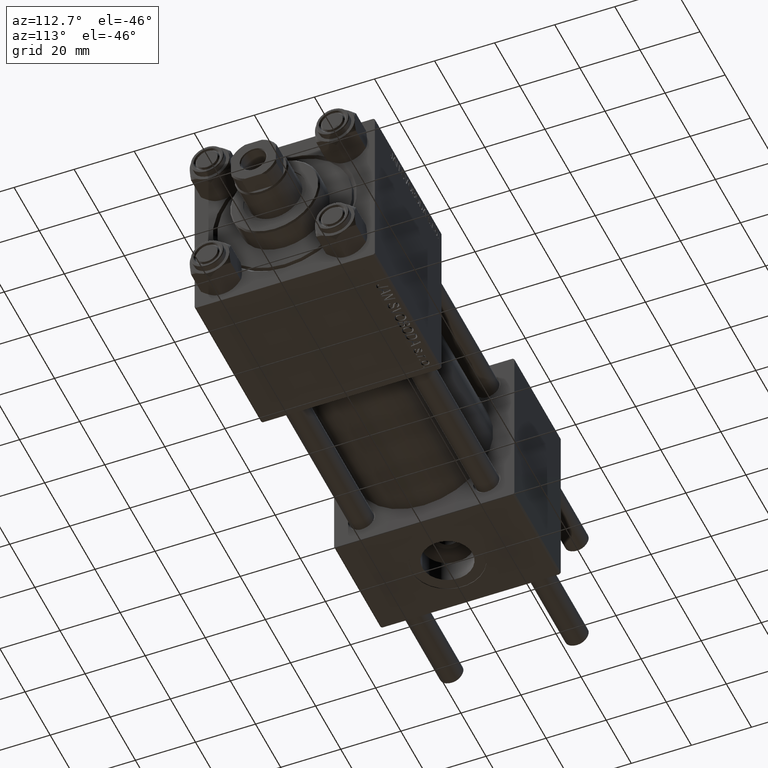
[diagram: clean part render]
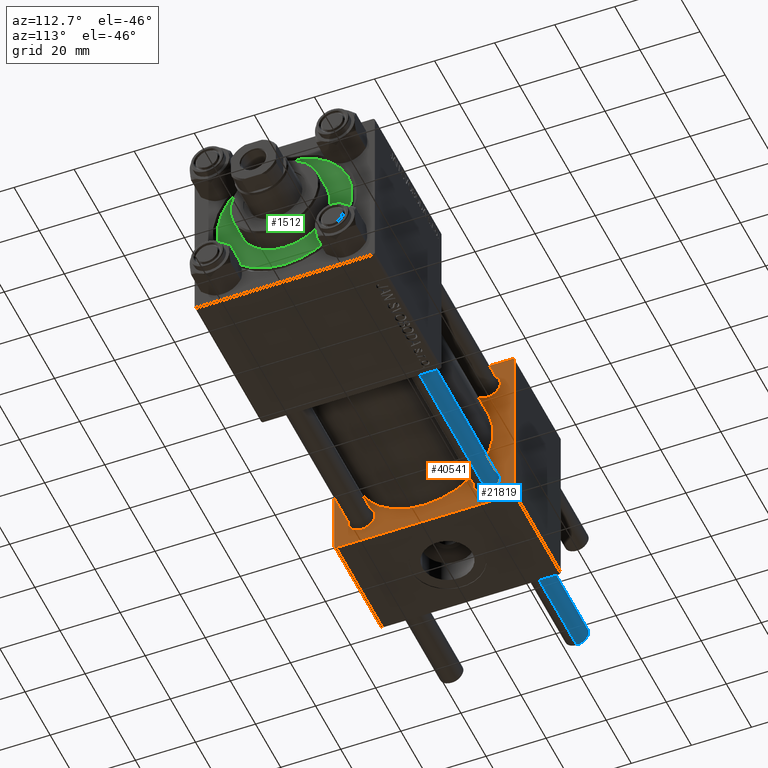
[diagram: same view with three faces highlighted in distinct colors, each labeled with its STEP entity id]
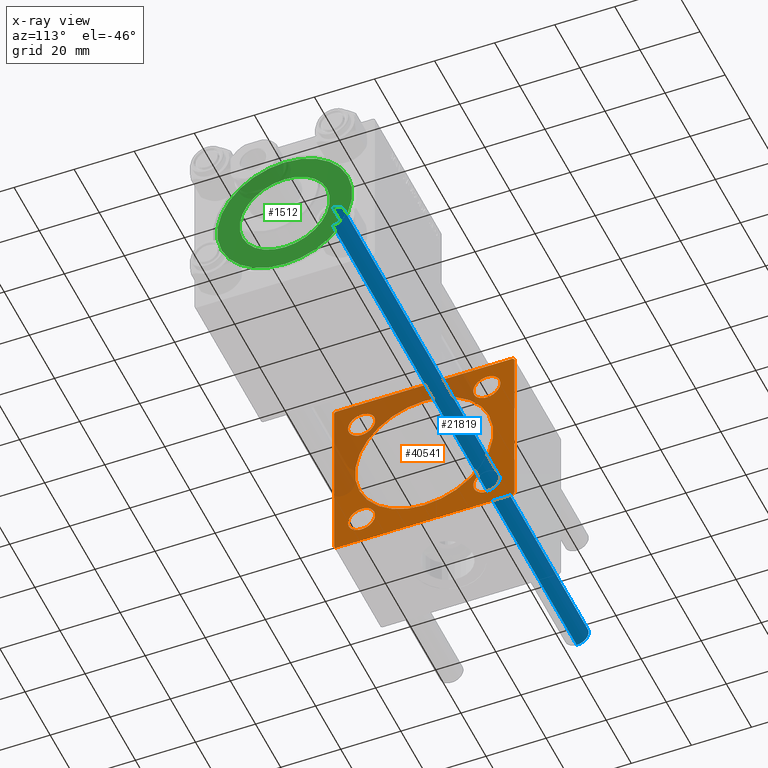
[diagram: x-ray of the same camera — body ghosted, the three highlighted faces saturated]
A machine part, auxiliary view with three faces highlighted in distinct colors.
The next image is the same camera in x-ray (body ghosted, the three faces saturated) — at least one of them is partly hidden behind the body in this view.
Their STEP definitions:

[orange] entity #40541 — the highlighted planar face has unit normal (-1, 0, 0).
#256 = EDGE_CURVE ( 'NONE', #1060, #20902, #37495, .T. ) ;
#368 = EDGE_CURVE ( 'NONE', #22522, #45989, #4483, .T. ) ;
#1060 = VERTEX_POINT ( 'NONE', #5241 ) ;
#1806 = VERTEX_POINT ( 'NONE', #31183 ) ;
#1809 = VECTOR ( 'NONE', #40213, 999.9999999999998863 ) ;
#2193 = CARTESIAN_POINT ( 'NONE',  ( 37.00000000000000000, 29.99999999999999289, 30.00000000000000000 ) ) ;
#2601 = CARTESIAN_POINT ( 'NONE',  ( 37.00000000000000000, 29.99999999999999289, -29.50000000000000000 ) ) ;
#3244 = DIRECTION ( 'NONE',  ( 0.000000000000000000, 0.000000000000000000, 1.000000000000000000 ) ) ;
#3779 = ORIENTED_EDGE ( 'NONE', *, *, #7545, .T. ) ;
#4015 = FACE_BOUND ( 'NONE', #40299, .T. ) ;
#4112 = DIRECTION ( 'NONE',  ( 0.000000000000000000, -0.7071067811865474617, 0.7071067811865474617 ) ) ;
#4483 = CIRCLE ( 'NONE', #27017, 4.499999999999990230 ) ;
#4517 = FACE_OUTER_BOUND ( 'NONE', #26734, .T. ) ;
#4529 = AXIS2_PLACEMENT_3D ( 'NONE', #31005, #8056, #23442 ) ;
#4650 = EDGE_CURVE ( 'NONE', #11129, #15801, #16479, .T. ) ;
#4826 = CARTESIAN_POINT ( 'NONE',  ( 37.00000000000000000, -20.84999999999999076, 16.35000000000001208 ) ) ;
#5230 = CARTESIAN_POINT ( 'NONE',  ( 37.00000000000000000, -20.84999999999999076, -20.85000000000000497 ) ) ;
#5232 = ORIENTED_EDGE ( 'NONE', *, *, #11017, .T. ) ;
#5241 = CARTESIAN_POINT ( 'NONE',  ( 37.00000000000000000, -20.84999999999999076, -16.35000000000001208 ) ) ;
#6235 = AXIS2_PLACEMENT_3D ( 'NONE', #41097, #18134, #3244 ) ;
#6612 = DIRECTION ( 'NONE',  ( -0.000000000000000000, -0.7071067811865474617, -0.7071067811865474617 ) ) ;
#6802 = VECTOR ( 'NONE', #4112, 1000.000000000000114 ) ;
#7027 = VECTOR ( 'NONE', #6612, 1000.000000000000114 ) ;
#7216 = DIRECTION ( 'NONE',  ( 0.000000000000000000, 0.000000000000000000, 1.000000000000000000 ) ) ;
#7545 = EDGE_CURVE ( 'NONE', #12221, #1806, #41200, .T. ) ;
#7638 = EDGE_LOOP ( 'NONE', ( #33575, #37806 ) ) ;
#7967 = AXIS2_PLACEMENT_3D ( 'NONE', #9785, #25666, #32740 ) ;
#8056 = DIRECTION ( 'NONE',  ( -1.000000000000000000, 0.000000000000000000, -0.000000000000000000 ) ) ;
#8092 = DIRECTION ( 'NONE',  ( -1.000000000000000000, 0.000000000000000000, -0.000000000000000000 ) ) ;
#8178 = CARTESIAN_POINT ( 'NONE',  ( 37.00000000000000000, 2.816687638038911957E-15, -23.00000000000000000 ) ) ;
#8447 = VERTEX_POINT ( 'NONE', #23274 ) ;
#9396 = ORIENTED_EDGE ( 'NONE', *, *, #18252, .T. ) ;
#9465 = CARTESIAN_POINT ( 'NONE',  ( 37.00000000000000000, 29.99999999999999289, 30.00000000000000000 ) ) ;
#9658 = EDGE_CURVE ( 'NONE', #45989, #22522, #10273, .T. ) ;
#9785 = CARTESIAN_POINT ( 'NONE',  ( 37.00000000000000000, -20.84999999999999076, -20.85000000000000497 ) ) ;
#9933 = CARTESIAN_POINT ( 'NONE',  ( 37.00000000000000000, 20.84999999999999787, 16.35000000000001208 ) ) ;
#10206 = CARTESIAN_POINT ( 'NONE',  ( 37.00000000000000000, 20.84999999999999787, 20.85000000000000142 ) ) ;
#10273 = CIRCLE ( 'NONE', #6235, 4.499999999999990230 ) ;
#10316 = CARTESIAN_POINT ( 'NONE',  ( 37.00000000000000000, 0.000000000000000000, 23.00000000000000000 ) ) ;
#10393 = EDGE_LOOP ( 'NONE', ( #5232, #20477 ) ) ;
#10896 = CARTESIAN_POINT ( 'NONE',  ( 37.00000000000000000, -30.00000000000000000, 29.49999999999999289 ) ) ;
#10984 = ORIENTED_EDGE ( 'NONE', *, *, #4650, .T. ) ;
#10988 = ORIENTED_EDGE ( 'NONE', *, *, #36198, .T. ) ;
#11017 = EDGE_CURVE ( 'NONE', #24084, #8447, #47375, .T. ) ;
#11129 = VERTEX_POINT ( 'NONE', #25975 ) ;
#11206 = ORIENTED_EDGE ( 'NONE', *, *, #15486, .T. ) ;
#11262 = EDGE_CURVE ( 'NONE', #37866, #1806, #25176, .T. ) ;
#11881 = CARTESIAN_POINT ( 'NONE',  ( 37.00000000000000000, -20.84999999999999076, 20.85000000000000497 ) ) ;
#11942 = LINE ( 'NONE', #42221, #6802 ) ;
#12221 = VERTEX_POINT ( 'NONE', #21205 ) ;
#12892 = CARTESIAN_POINT ( 'NONE',  ( 37.00000000000000000, 0.000000000000000000, 0.000000000000000000 ) ) ;
#13393 = DIRECTION ( 'NONE',  ( -1.000000000000000000, 0.000000000000000000, -0.000000000000000000 ) ) ;
#14431 = CARTESIAN_POINT ( 'NONE',  ( 37.00000000000000000, -30.00000000000000000, 29.99999999999999289 ) ) ;
#14795 = EDGE_CURVE ( 'NONE', #41622, #23012, #49908, .T. ) ;
#15185 = LINE ( 'NONE', #26543, #43147 ) ;
#15486 = EDGE_CURVE ( 'NONE', #46972, #11129, #36639, .T. ) ;
#15629 = PLANE ( 'NONE',  #4529 ) ;
#15660 = AXIS2_PLACEMENT_3D ( 'NONE', #10206, #32660, #49033 ) ;
#15770 = CARTESIAN_POINT ( 'NONE',  ( 37.00000000000000000, 20.84999999999999787, -20.85000000000000142 ) ) ;
#15801 = VERTEX_POINT ( 'NONE', #30747 ) ;
#16479 = LINE ( 'NONE', #33854, #22972 ) ;
#16835 = DIRECTION ( 'NONE',  ( 0.000000000000000000, 0.000000000000000000, 1.000000000000000000 ) ) ;
#18134 = DIRECTION ( 'NONE',  ( -1.000000000000000000, 0.000000000000000000, -0.000000000000000000 ) ) ;
#18252 = EDGE_CURVE ( 'NONE', #20902, #1060, #18447, .T. ) ;
#18296 = CARTESIAN_POINT ( 'NONE',  ( 37.00000000000000000, 29.49999999999999289, 30.00000000000000000 ) ) ;
#18447 = CIRCLE ( 'NONE', #7967, 4.499999999999990230 ) ;
#19207 = DIRECTION ( 'NONE',  ( 0.000000000000000000, -1.000000000000000000, -1.156482317317871725E-16 ) ) ;
#20063 = LINE ( 'NONE', #9465, #31793 ) ;
#20398 = DIRECTION ( 'NONE',  ( 0.000000000000000000, 0.000000000000000000, -1.000000000000000000 ) ) ;
#20477 = ORIENTED_EDGE ( 'NONE', *, *, #36282, .T. ) ;
#20877 = VECTOR ( 'NONE', #41417, 1000.000000000000000 ) ;
#20902 = VERTEX_POINT ( 'NONE', #25826 ) ;
#21205 = CARTESIAN_POINT ( 'NONE',  ( 37.00000000000000000, 29.49999999999997868, -30.00000000000000000 ) ) ;
#21216 = AXIS2_PLACEMENT_3D ( 'NONE', #11881, #8092, #35081 ) ;
#21535 = CARTESIAN_POINT ( 'NONE',  ( 37.00000000000000000, -29.49999999999998579, 29.99999999999999289 ) ) ;
#21711 = VERTEX_POINT ( 'NONE', #32225 ) ;
#21766 = CARTESIAN_POINT ( 'NONE',  ( 37.00000000000000000, -20.84999999999999076, 20.85000000000000497 ) ) ;
#21771 = ORIENTED_EDGE ( 'NONE', *, *, #29430, .F. ) ;
#22522 = VERTEX_POINT ( 'NONE', #37002 ) ;
#22972 = VECTOR ( 'NONE', #29561, 1000.000000000000114 ) ;
#23012 = VERTEX_POINT ( 'NONE', #8178 ) ;
#23274 = CARTESIAN_POINT ( 'NONE',  ( 37.00000000000000000, 20.84999999999999787, 25.34999999999999076 ) ) ;
#23442 = DIRECTION ( 'NONE',  ( -0.000000000000000000, 0.000000000000000000, 1.000000000000000000 ) ) ;
#23697 = FACE_BOUND ( 'NONE', #38952, .T. ) ;
#23699 = ORIENTED_EDGE ( 'NONE', *, *, #256, .T. ) ;
#24084 = VERTEX_POINT ( 'NONE', #9933 ) ;
#24402 = DIRECTION ( 'NONE',  ( 0.000000000000000000, 0.000000000000000000, 1.000000000000000000 ) ) ;
#24435 = CIRCLE ( 'NONE', #21216, 4.499999999999990230 ) ;
#24646 = DIRECTION ( 'NONE',  ( 1.000000000000000000, -0.000000000000000000, 0.000000000000000000 ) ) ;
#24718 = CIRCLE ( 'NONE', #42414, 4.499999999999990230 ) ;
#25176 = LINE ( 'NONE', #2193, #44947 ) ;
#25241 = DIRECTION ( 'NONE',  ( 0.000000000000000000, 0.000000000000000000, 1.000000000000000000 ) ) ;
#25325 = ORIENTED_EDGE ( 'NONE', *, *, #14795, .F. ) ;
#25666 = DIRECTION ( 'NONE',  ( -1.000000000000000000, 0.000000000000000000, -0.000000000000000000 ) ) ;
#25826 = CARTESIAN_POINT ( 'NONE',  ( 37.00000000000000000, -20.84999999999999076, -25.34999999999999432 ) ) ;
#25975 = CARTESIAN_POINT ( 'NONE',  ( 37.00000000000000000, -30.00000000000000000, -29.50000000000001776 ) ) ;
#26032 = LINE ( 'NONE', #10896, #7027 ) ;
#26061 = DIRECTION ( 'NONE',  ( -1.000000000000000000, 0.000000000000000000, -0.000000000000000000 ) ) ;
#26543 = CARTESIAN_POINT ( 'NONE',  ( 37.00000000000000000, 29.99999999999999289, -30.00000000000000000 ) ) ;
#26734 = EDGE_LOOP ( 'NONE', ( #41058, #3779, #49032, #35769, #10988, #29369, #11206, #10984 ) ) ;
#27017 = AXIS2_PLACEMENT_3D ( 'NONE', #15770, #45806, #7216 ) ;
#28267 = DIRECTION ( 'NONE',  ( 0.000000000000000000, 0.000000000000000000, 1.000000000000000000 ) ) ;
#28649 = AXIS2_PLACEMENT_3D ( 'NONE', #5230, #31969, #16835 ) ;
#28801 = EDGE_LOOP ( 'NONE', ( #44195, #34320 ) ) ;
#29028 = CARTESIAN_POINT ( 'NONE',  ( 37.00000000000000000, 20.84999999999999787, -25.34999999999999076 ) ) ;
#29369 = ORIENTED_EDGE ( 'NONE', *, *, #42560, .T. ) ;
#29430 = EDGE_CURVE ( 'NONE', #23012, #41622, #29953, .T. ) ;
#29561 = DIRECTION ( 'NONE',  ( 0.000000000000000000, 0.7071067811865474617, -0.7071067811865474617 ) ) ;
#29953 = CIRCLE ( 'NONE', #34786, 23.00000000000000000 ) ;
#30747 = CARTESIAN_POINT ( 'NONE',  ( 37.00000000000000000, -29.50000000000000000, -30.00000000000000711 ) ) ;
#31005 = CARTESIAN_POINT ( 'NONE',  ( 37.00000000000000000, 0.000000000000000000, 0.000000000000000000 ) ) ;
#31183 = CARTESIAN_POINT ( 'NONE',  ( 37.00000000000000000, 29.99999999999999289, -29.50000000000000000 ) ) ;
#31793 = VECTOR ( 'NONE', #35706, 1000.000000000000000 ) ;
#31969 = DIRECTION ( 'NONE',  ( -1.000000000000000000, 0.000000000000000000, -0.000000000000000000 ) ) ;
#32201 = CARTESIAN_POINT ( 'NONE',  ( 37.00000000000000000, 0.000000000000000000, 0.000000000000000000 ) ) ;
#32225 = CARTESIAN_POINT ( 'NONE',  ( 37.00000000000000000, -20.84999999999999076, 25.34999999999999432 ) ) ;
#32660 = DIRECTION ( 'NONE',  ( -1.000000000000000000, 0.000000000000000000, -0.000000000000000000 ) ) ;
#32740 = DIRECTION ( 'NONE',  ( 0.000000000000000000, 0.000000000000000000, 1.000000000000000000 ) ) ;
#33345 = EDGE_CURVE ( 'NONE', #38277, #21711, #24435, .T. ) ;
#33575 = ORIENTED_EDGE ( 'NONE', *, *, #9658, .T. ) ;
#33854 = CARTESIAN_POINT ( 'NONE',  ( 37.00000000000000000, -29.50000000000001066, -30.00000000000000711 ) ) ;
#34320 = ORIENTED_EDGE ( 'NONE', *, *, #40973, .T. ) ;
#34786 = AXIS2_PLACEMENT_3D ( 'NONE', #32201, #24646, #24402 ) ;
#34802 = FACE_BOUND ( 'NONE', #10393, .T. ) ;
#35081 = DIRECTION ( 'NONE',  ( 0.000000000000000000, 0.000000000000000000, 1.000000000000000000 ) ) ;
#35155 = CARTESIAN_POINT ( 'NONE',  ( 37.00000000000000000, 29.99999999999999289, 29.50000000000000000 ) ) ;
#35706 = DIRECTION ( 'NONE',  ( 0.000000000000000000, -1.000000000000000000, -1.156482317317871725E-16 ) ) ;
#35769 = ORIENTED_EDGE ( 'NONE', *, *, #36482, .T. ) ;
#36198 = EDGE_CURVE ( 'NONE', #46529, #47744, #20063, .T. ) ;
#36282 = EDGE_CURVE ( 'NONE', #8447, #24084, #47114, .T. ) ;
#36482 = EDGE_CURVE ( 'NONE', #37866, #46529, #11942, .T. ) ;
#36639 = LINE ( 'NONE', #14431, #20877 ) ;
#36912 = DIRECTION ( 'NONE',  ( 0.000000000000000000, 0.000000000000000000, 1.000000000000000000 ) ) ;
#37002 = CARTESIAN_POINT ( 'NONE',  ( 37.00000000000000000, 20.84999999999999787, -16.35000000000001208 ) ) ;
#37495 = CIRCLE ( 'NONE', #28649, 4.499999999999990230 ) ;
#37806 = ORIENTED_EDGE ( 'NONE', *, *, #368, .T. ) ;
#37866 = VERTEX_POINT ( 'NONE', #35155 ) ;
#38277 = VERTEX_POINT ( 'NONE', #4826 ) ;
#38952 = EDGE_LOOP ( 'NONE', ( #25325, #21771 ) ) ;
#39161 = EDGE_CURVE ( 'NONE', #12221, #15801, #15185, .T. ) ;
#39591 = CARTESIAN_POINT ( 'NONE',  ( 37.00000000000000000, -30.00000000000000000, 29.49999999999999289 ) ) ;
#40213 = DIRECTION ( 'NONE',  ( -0.000000000000000000, 0.7071067811865574537, 0.7071067811865376918 ) ) ;
#40299 = EDGE_LOOP ( 'NONE', ( #9396, #23699 ) ) ;
#40541 = ADVANCED_FACE ( 'NONE', ( #4015, #42874, #42607, #34802, #23697, #4517 ), #15629, .F. ) ;
#40612 = CARTESIAN_POINT ( 'NONE',  ( 37.00000000000000000, 20.84999999999999787, 20.85000000000000142 ) ) ;
#40973 = EDGE_CURVE ( 'NONE', #21711, #38277, #24718, .T. ) ;
#41058 = ORIENTED_EDGE ( 'NONE', *, *, #39161, .F. ) ;
#41097 = CARTESIAN_POINT ( 'NONE',  ( 37.00000000000000000, 20.84999999999999787, -20.85000000000000142 ) ) ;
#41200 = LINE ( 'NONE', #2601, #1809 ) ;
#41417 = DIRECTION ( 'NONE',  ( 0.000000000000000000, 0.000000000000000000, -1.000000000000000000 ) ) ;
#41622 = VERTEX_POINT ( 'NONE', #10316 ) ;
#41728 = AXIS2_PLACEMENT_3D ( 'NONE', #12892, #42647, #28267 ) ;
#42221 = CARTESIAN_POINT ( 'NONE',  ( 37.00000000000000000, 29.49999999999999289, 30.00000000000000000 ) ) ;
#42414 = AXIS2_PLACEMENT_3D ( 'NONE', #21766, #26061, #36912 ) ;
#42560 = EDGE_CURVE ( 'NONE', #47744, #46972, #26032, .T. ) ;
#42607 = FACE_BOUND ( 'NONE', #28801, .T. ) ;
#42647 = DIRECTION ( 'NONE',  ( 1.000000000000000000, -0.000000000000000000, 0.000000000000000000 ) ) ;
#42874 = FACE_BOUND ( 'NONE', #7638, .T. ) ;
#43147 = VECTOR ( 'NONE', #19207, 1000.000000000000000 ) ;
#44158 = AXIS2_PLACEMENT_3D ( 'NONE', #40612, #13393, #25241 ) ;
#44195 = ORIENTED_EDGE ( 'NONE', *, *, #33345, .T. ) ;
#44947 = VECTOR ( 'NONE', #20398, 1000.000000000000000 ) ;
#45806 = DIRECTION ( 'NONE',  ( -1.000000000000000000, 0.000000000000000000, -0.000000000000000000 ) ) ;
#45989 = VERTEX_POINT ( 'NONE', #29028 ) ;
#46529 = VERTEX_POINT ( 'NONE', #18296 ) ;
#46972 = VERTEX_POINT ( 'NONE', #39591 ) ;
#47114 = CIRCLE ( 'NONE', #15660, 4.499999999999990230 ) ;
#47375 = CIRCLE ( 'NONE', #44158, 4.499999999999990230 ) ;
#47744 = VERTEX_POINT ( 'NONE', #21535 ) ;
#49032 = ORIENTED_EDGE ( 'NONE', *, *, #11262, .F. ) ;
#49033 = DIRECTION ( 'NONE',  ( 0.000000000000000000, 0.000000000000000000, 1.000000000000000000 ) ) ;
#49908 = CIRCLE ( 'NONE', #41728, 23.00000000000000000 ) ;

[blue] entity #21819 — the highlighted cylindrical surface (edge-blend (fillet) strip) has radius 4 mm, axis along (1, 0, -0).
#79 = DIRECTION ( 'NONE',  ( -0.000000000000000000, -0.000000000000000000, -1.000000000000000000 ) ) ;
#276 = DIRECTION ( 'NONE',  ( 0.000000000000000000, 0.000000000000000000, -1.000000000000000000 ) ) ;
#305 = DIRECTION ( 'NONE',  ( 1.000000000000000000, 0.000000000000000000, 0.000000000000000000 ) ) ;
#3364 = CYLINDRICAL_SURFACE ( 'NONE', #30611, 4.000000000000000000 ) ;
#3520 = CARTESIAN_POINT ( 'NONE',  ( -4.000000000000000000, 0.000000000000000000, 194.5000000000000568 ) ) ;
#3606 = DIRECTION ( 'NONE',  ( -0.000000000000000000, -0.000000000000000000, -1.000000000000000000 ) ) ;
#4097 = DIRECTION ( 'NONE',  ( -0.000000000000000000, -0.000000000000000000, 1.000000000000000000 ) ) ;
#5806 = CARTESIAN_POINT ( 'NONE',  ( 4.000000000000000000, 4.898587196589412829E-16, 0.5000000000000004441 ) ) ;
#7042 = ORIENTED_EDGE ( 'NONE', *, *, #14405, .T. ) ;
#9087 = AXIS2_PLACEMENT_3D ( 'NONE', #38413, #4097, #305 ) ;
#9527 = VERTEX_POINT ( 'NONE', #28510 ) ;
#12066 = VECTOR ( 'NONE', #79, 1000.000000000000000 ) ;
#13018 = CARTESIAN_POINT ( 'NONE',  ( -4.000000000000000000, 0.000000000000000000, 195.0000000000000000 ) ) ;
#13979 = ORIENTED_EDGE ( 'NONE', *, *, #38193, .T. ) ;
#14405 = EDGE_CURVE ( 'NONE', #37173, #35568, #19259, .T. ) ;
#15227 = DIRECTION ( 'NONE',  ( -1.000000000000000000, 0.000000000000000000, 0.000000000000000000 ) ) ;
#15396 = EDGE_LOOP ( 'NONE', ( #13979, #7042, #31900, #42147 ) ) ;
#17778 = DIRECTION ( 'NONE',  ( -0.000000000000000000, -0.000000000000000000, -1.000000000000000000 ) ) ;
#18968 = AXIS2_PLACEMENT_3D ( 'NONE', #34851, #276, #42424 ) ;
#19259 = LINE ( 'NONE', #34654, #12066 ) ;
#21819 = ADVANCED_FACE ( 'NONE', ( #45751 ), #3364, .T. ) ;
#26284 = EDGE_CURVE ( 'NONE', #27846, #9527, #33162, .T. ) ;
#27846 = VERTEX_POINT ( 'NONE', #3520 ) ;
#28422 = CIRCLE ( 'NONE', #9087, 4.000000000000000000 ) ;
#28510 = CARTESIAN_POINT ( 'NONE',  ( -4.000000000000000000, 0.000000000000000000, 0.5000000000000004441 ) ) ;
#30611 = AXIS2_PLACEMENT_3D ( 'NONE', #41969, #3606, #15227 ) ;
#31475 = EDGE_CURVE ( 'NONE', #35568, #9527, #28422, .T. ) ;
#31900 = ORIENTED_EDGE ( 'NONE', *, *, #31475, .T. ) ;
#33162 = LINE ( 'NONE', #13018, #40439 ) ;
#33790 = CARTESIAN_POINT ( 'NONE',  ( 4.000000000000000000, 4.898587196589412829E-16, 194.5000000000000568 ) ) ;
#34654 = CARTESIAN_POINT ( 'NONE',  ( 4.000000000000000000, 4.898587196589412829E-16, 195.0000000000000000 ) ) ;
#34851 = CARTESIAN_POINT ( 'NONE',  ( 0.000000000000000000, 0.000000000000000000, 194.5000000000000568 ) ) ;
#35568 = VERTEX_POINT ( 'NONE', #5806 ) ;
#37173 = VERTEX_POINT ( 'NONE', #33790 ) ;
#38193 = EDGE_CURVE ( 'NONE', #27846, #37173, #49590, .T. ) ;
#38413 = CARTESIAN_POINT ( 'NONE',  ( 0.000000000000000000, 0.000000000000000000, 0.5000000000000004441 ) ) ;
#40439 = VECTOR ( 'NONE', #17778, 1000.000000000000000 ) ;
#41969 = CARTESIAN_POINT ( 'NONE',  ( 0.000000000000000000, 0.000000000000000000, 195.0000000000000000 ) ) ;
#42147 = ORIENTED_EDGE ( 'NONE', *, *, #26284, .F. ) ;
#42424 = DIRECTION ( 'NONE',  ( 1.000000000000000000, 0.000000000000000000, 0.000000000000000000 ) ) ;
#45751 = FACE_OUTER_BOUND ( 'NONE', #15396, .T. ) ;
#49590 = CIRCLE ( 'NONE', #18968, 4.000000000000000000 ) ;

[green] entity #1512 — the highlighted planar face has unit normal (1, 0, -0).
#247 = EDGE_LOOP ( 'NONE', ( #24582, #47182 ) ) ;
#1512 = ADVANCED_FACE ( 'NONE', ( #6560, #3259 ), #22928, .T. ) ;
#2180 = AXIS2_PLACEMENT_3D ( 'NONE', #34047, #42111, #45154 ) ;
#2826 = CARTESIAN_POINT ( 'NONE',  ( -22.50000000000000355, 0.000000000000000000, 28.69999999999999929 ) ) ;
#2933 = CIRCLE ( 'NONE', #22236, 15.00000000000000000 ) ;
#3259 = FACE_OUTER_BOUND ( 'NONE', #247, .T. ) ;
#3756 = CARTESIAN_POINT ( 'NONE',  ( 0.000000000000000000, 0.000000000000000000, 28.69999999999999929 ) ) ;
#5391 = DIRECTION ( 'NONE',  ( 0.000000000000000000, 0.000000000000000000, 1.000000000000000000 ) ) ;
#5770 = VERTEX_POINT ( 'NONE', #34801 ) ;
#6560 = FACE_BOUND ( 'NONE', #32439, .T. ) ;
#12779 = DIRECTION ( 'NONE',  ( 1.000000000000000000, 0.000000000000000000, 0.000000000000000000 ) ) ;
#13177 = DIRECTION ( 'NONE',  ( 1.000000000000000000, 0.000000000000000000, 0.000000000000000000 ) ) ;
#14207 = EDGE_CURVE ( 'NONE', #36538, #45545, #36199, .T. ) ;
#14436 = AXIS2_PLACEMENT_3D ( 'NONE', #28346, #5391, #36168 ) ;
#16780 = EDGE_CURVE ( 'NONE', #45545, #36538, #27360, .T. ) ;
#19984 = DIRECTION ( 'NONE',  ( 0.000000000000000000, 0.000000000000000000, 1.000000000000000000 ) ) ;
#22236 = AXIS2_PLACEMENT_3D ( 'NONE', #28298, #19984, #13177 ) ;
#22928 = PLANE ( 'NONE',  #2180 ) ;
#24308 = CARTESIAN_POINT ( 'NONE',  ( 22.50000000000000355, 2.755455298081545172E-15, 28.69999999999999929 ) ) ;
#24582 = ORIENTED_EDGE ( 'NONE', *, *, #16780, .T. ) ;
#26338 = ORIENTED_EDGE ( 'NONE', *, *, #41161, .F. ) ;
#27360 = CIRCLE ( 'NONE', #37009, 22.50000000000000355 ) ;
#28298 = CARTESIAN_POINT ( 'NONE',  ( 0.000000000000000000, 0.000000000000000000, 28.69999999999999929 ) ) ;
#28346 = CARTESIAN_POINT ( 'NONE',  ( 0.000000000000000000, 0.000000000000000000, 28.69999999999999929 ) ) ;
#30307 = AXIS2_PLACEMENT_3D ( 'NONE', #47343, #48082, #12779 ) ;
#30998 = DIRECTION ( 'NONE',  ( 1.000000000000000000, 0.000000000000000000, 0.000000000000000000 ) ) ;
#32439 = EDGE_LOOP ( 'NONE', ( #26338, #38096 ) ) ;
#34047 = CARTESIAN_POINT ( 'NONE',  ( 0.000000000000000000, 0.000000000000000000, 28.69999999999999929 ) ) ;
#34345 = CIRCLE ( 'NONE', #30307, 15.00000000000000000 ) ;
#34801 = CARTESIAN_POINT ( 'NONE',  ( -15.00000000000000000, 0.000000000000000000, 28.69999999999999929 ) ) ;
#36168 = DIRECTION ( 'NONE',  ( 1.000000000000000000, 0.000000000000000000, 0.000000000000000000 ) ) ;
#36199 = CIRCLE ( 'NONE', #14436, 22.50000000000000355 ) ;
#36538 = VERTEX_POINT ( 'NONE', #24308 ) ;
#36857 = VERTEX_POINT ( 'NONE', #46308 ) ;
#37009 = AXIS2_PLACEMENT_3D ( 'NONE', #3756, #45904, #30998 ) ;
#38096 = ORIENTED_EDGE ( 'NONE', *, *, #44139, .F. ) ;
#41161 = EDGE_CURVE ( 'NONE', #5770, #36857, #2933, .T. ) ;
#42111 = DIRECTION ( 'NONE',  ( 0.000000000000000000, 0.000000000000000000, 1.000000000000000000 ) ) ;
#44139 = EDGE_CURVE ( 'NONE', #36857, #5770, #34345, .T. ) ;
#45154 = DIRECTION ( 'NONE',  ( 1.000000000000000000, 0.000000000000000000, -0.000000000000000000 ) ) ;
#45545 = VERTEX_POINT ( 'NONE', #2826 ) ;
#45904 = DIRECTION ( 'NONE',  ( 0.000000000000000000, 0.000000000000000000, 1.000000000000000000 ) ) ;
#46308 = CARTESIAN_POINT ( 'NONE',  ( 15.00000000000000000, 1.836970198721029589E-15, 28.69999999999999929 ) ) ;
#47182 = ORIENTED_EDGE ( 'NONE', *, *, #14207, .T. ) ;
#47343 = CARTESIAN_POINT ( 'NONE',  ( 0.000000000000000000, 0.000000000000000000, 28.69999999999999929 ) ) ;
#48082 = DIRECTION ( 'NONE',  ( 0.000000000000000000, 0.000000000000000000, 1.000000000000000000 ) ) ;